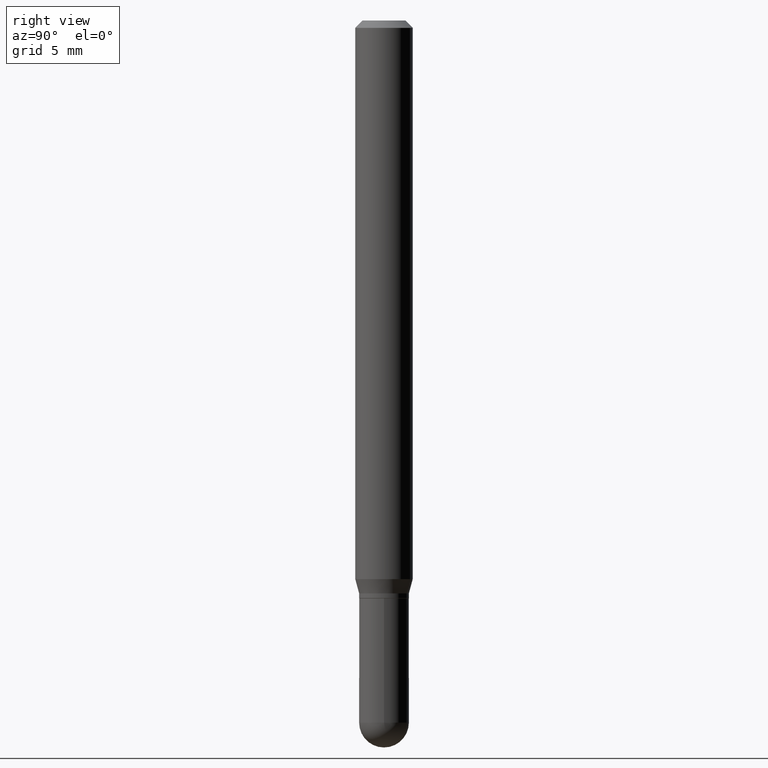
[diagram: clean part render]
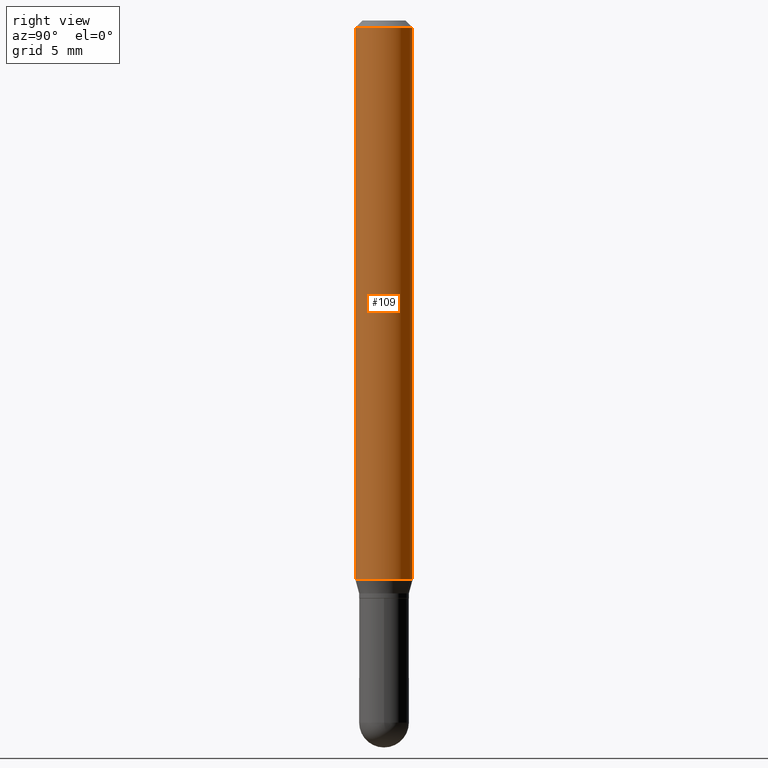
[diagram: same view with one face highlighted and labeled with its STEP entity id]
A machine part, right view. The second image highlights one B-rep face of the part: STEP entity #109.
In plain terms, the highlighted cylindrical surface (edge-blend (fillet) strip) has radius 1.4999 mm, axis along (-0, 0, 1).
Its self-contained STEP definition (entity closure, byte-faithful):
#3 = VERTEX_POINT ( 'NONE', #276 ) ;
#38 = ORIENTED_EDGE ( 'NONE', *, *, #350, .F. ) ;
#42 = VECTOR ( 'NONE', #74, 39.37007874015748143 ) ;
#49 = AXIS2_PLACEMENT_3D ( 'NONE', #166, #55, #252 ) ;
#51 = CARTESIAN_POINT ( 'NONE',  ( -4.123439461173460281E-16, -0.05905000000000402288, -1.149703401160584448 ) ) ;
#55 = DIRECTION ( 'NONE',  ( -2.445541197990066903E-29, 3.491377669658199558E-15, 1.000000000000000000 ) ) ;
#68 = DIRECTION ( 'NONE',  ( -6.982962677686265922E-15, -1.000000000000000000, 4.626330217890369336E-15 ) ) ;
#71 = VECTOR ( 'NONE', #430, 39.37007874015748143 ) ;
#74 = DIRECTION ( 'NONE',  ( -2.445541197990066623E-29, 3.491377669658199163E-15, 1.000000000000000000 ) ) ;
#82 = EDGE_CURVE ( 'NONE', #478, #3, #466, .T. ) ;
#108 = CARTESIAN_POINT ( 'NONE',  ( 2.811647033007510511E-29, -4.014048781542148167E-15, -1.149703401160584670 ) ) ;
#109 = ADVANCED_FACE ( 'NONE', ( #221 ), #184, .T. ) ;
#119 = CIRCLE ( 'NONE', #49, 0.05904999999999999832 ) ;
#165 = AXIS2_PLACEMENT_3D ( 'NONE', #108, #291, #68 ) ;
#166 = CARTESIAN_POINT ( 'NONE',  ( 3.668311796985106135E-31, -5.237066504487307521E-17, -0.01500000000000002373 ) ) ;
#180 = ORIENTED_EDGE ( 'NONE', *, *, #82, .T. ) ;
#184 = CYLINDRICAL_SURFACE ( 'NONE', #381, 0.05904999999999999832 ) ;
#185 = LINE ( 'NONE', #229, #71 ) ;
#221 = FACE_OUTER_BOUND ( 'NONE', #250, .T. ) ;
#223 = ORIENTED_EDGE ( 'NONE', *, *, #435, .T. ) ;
#226 = CARTESIAN_POINT ( 'NONE',  ( 0.000000000000000000, 0.000000000000000000, 0.000000000000000000 ) ) ;
#229 = CARTESIAN_POINT ( 'NONE',  ( -4.123439461173739834E-16, -0.05904999999999999832, 2.061658513933166628E-16 ) ) ;
#250 = EDGE_LOOP ( 'NONE', ( #180, #223, #419, #38 ) ) ;
#252 = DIRECTION ( 'NONE',  ( -6.982962677686265922E-15, -1.000000000000000000, 3.505890868245046092E-15 ) ) ;
#253 = DIRECTION ( 'NONE',  ( -6.982962677686265922E-15, -1.000000000000000000, 3.491377669658199163E-15 ) ) ;
#264 = EDGE_CURVE ( 'NONE', #357, #365, #119, .T. ) ;
#276 = CARTESIAN_POINT ( 'NONE',  ( 4.195754854663671031E-16, 0.05904999999999598070, -1.149703401160584892 ) ) ;
#291 = DIRECTION ( 'NONE',  ( -2.445541197990066903E-29, 3.491377669658199558E-15, 1.000000000000000000 ) ) ;
#334 = DIRECTION ( 'NONE',  ( -2.445541197990066903E-29, 3.491377669658199558E-15, 1.000000000000000000 ) ) ;
#350 = EDGE_CURVE ( 'NONE', #478, #357, #185, .T. ) ;
#357 = VERTEX_POINT ( 'NONE', #385 ) ;
#365 = VERTEX_POINT ( 'NONE', #510 ) ;
#381 = AXIS2_PLACEMENT_3D ( 'NONE', #226, #334, #253 ) ;
#385 = CARTESIAN_POINT ( 'NONE',  ( -4.123439461173736383E-16, -0.05905000000000005383, -0.01499999999999981730 ) ) ;
#390 = LINE ( 'NONE', #471, #42 ) ;
#419 = ORIENTED_EDGE ( 'NONE', *, *, #264, .F. ) ;
#430 = DIRECTION ( 'NONE',  ( -2.445541197990066623E-29, 3.491377669658199163E-15, 1.000000000000000000 ) ) ;
#435 = EDGE_CURVE ( 'NONE', #3, #365, #390, .T. ) ;
#466 = CIRCLE ( 'NONE', #165, 0.05904999999999999832 ) ;
#471 = CARTESIAN_POINT ( 'NONE',  ( 4.195754854663390985E-16, 0.05904999999999999832, -2.061658513933166628E-16 ) ) ;
#478 = VERTEX_POINT ( 'NONE', #51 ) ;
#510 = CARTESIAN_POINT ( 'NONE',  ( 4.195754854663673989E-16, 0.05904999999999994975, -0.01500000000000023016 ) ) ;